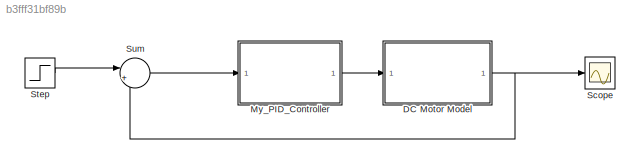
MODEL slx_b3fff31bf89b
KIND model
CONFIG AbsTol = auto
CONFIG EnableMultiTasking = off
CONFIG FixedStep = auto
CONFIG MaxStep = auto
CONFIG MinStep = auto
CONFIG RelTol = 1e-3
CONFIG SampleTimeConstraint = Unconstrained
CONFIG SolverName = VariableStepAuto
CONFIG StartTime = 0.0
CONFIG StopTime = 10.0
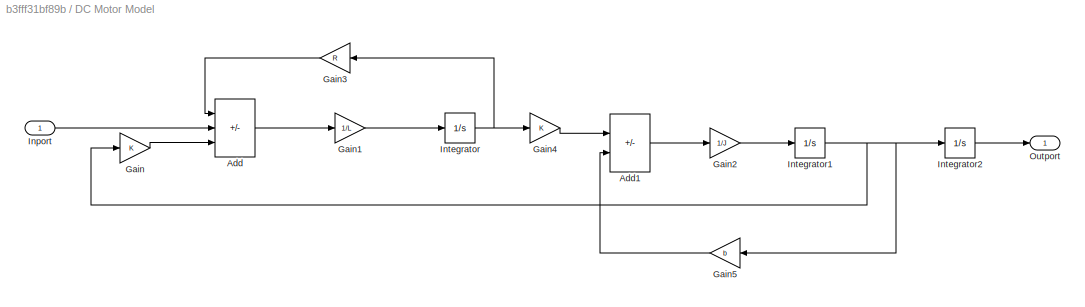
BLOCK [SubSystem] DC Motor Model
  Ports = [1, 1]
  RequestExecContextInheritance = off
BLOCK [Sum] DC Motor Model/Add
  IconShape = rectangular
  Inputs = -+-
  Ports = [3, 1]
BLOCK [Sum] DC Motor Model/Add1
  IconShape = rectangular
  Inputs = +-
  Ports = [2, 1]
BLOCK [Gain] DC Motor Model/Gain
  Gain = K
BLOCK [Gain] DC Motor Model/Gain1
  Gain = 1/L
BLOCK [Gain] DC Motor Model/Gain2
  Gain = 1/J
BLOCK [Gain] DC Motor Model/Gain3
  Gain = R
  NameLocation = top
BLOCK [Gain] DC Motor Model/Gain4
  Gain = K
BLOCK [Gain] DC Motor Model/Gain5
  Gain = b
  NameLocation = top
BLOCK [Inport] DC Motor Model/Inport
BLOCK [Integrator] DC Motor Model/Integrator
  Ports = [1, 1]
BLOCK [Integrator] DC Motor Model/Integrator1
  Ports = [1, 1]
BLOCK [Integrator] DC Motor Model/Integrator2
  Ports = [1, 1]
BLOCK [Outport] DC Motor Model/Outport
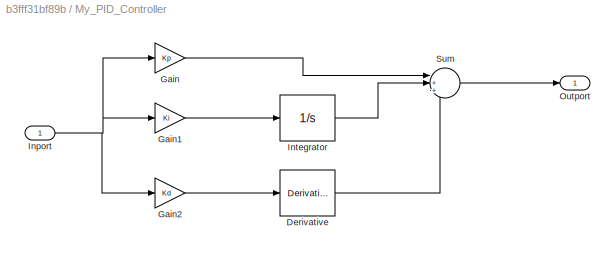
BLOCK [SubSystem] My_PID_Controller
  Ports = [1, 1]
  RequestExecContextInheritance = off
BLOCK [Derivative] My_PID_Controller/Derivative
BLOCK [Gain] My_PID_Controller/Gain
  Gain = Kp
BLOCK [Gain] My_PID_Controller/Gain1
  Gain = Ki
BLOCK [Gain] My_PID_Controller/Gain2
  Gain = Kd
BLOCK [Inport] My_PID_Controller/Inport
BLOCK [Integrator] My_PID_Controller/Integrator
  Ports = [1, 1]
BLOCK [Outport] My_PID_Controller/Outport
BLOCK [Sum] My_PID_Controller/Sum
  Inputs = |+++
  Ports = [3, 1]
BLOCK [Scope] Scope
  Floating = off
  NumInputPorts = 1
  Ports = [1]
  ScopeSpecificationString = Simulink.scopes.TimeScopeBlockCfg('CurrentConfiguration', extmgr.ConfigurationSet(extmgr.Configuration('Core','General UI',true),extmgr.Configuration('Core','Source UI',true),extmgr.Configuration('Sources','WiredSimulink',true),extmgr.Configuration('Visuals','Time Domain',true,'SerializedDisplays',{struct('MinYLimReal','-202.4094','MaxYLimReal','22.48993','YLabelReal','','MinYLimMag',' 0.00000','M...<+1369ch>
BLOCK [Step] Step
  After = 150
  SampleTime = 0
  Time = 0
BLOCK [Sum] Sum
  Inputs = |++
  Ports = [2, 1]
LINE DC Motor Model/Add1:1 -> DC Motor Model/Gain2:1
LINE DC Motor Model/Add:1 -> DC Motor Model/Gain1:1
LINE DC Motor Model/Gain1:1 -> DC Motor Model/Integrator:1
LINE DC Motor Model/Gain2:1 -> DC Motor Model/Integrator1:1
LINE DC Motor Model/Gain3:1 -> DC Motor Model/Add:1
LINE DC Motor Model/Gain4:1 -> DC Motor Model/Add1:1
LINE DC Motor Model/Gain5:1 -> DC Motor Model/Add1:2
LINE DC Motor Model/Gain:1 -> DC Motor Model/Add:3
LINE DC Motor Model/Inport:1 -> DC Motor Model/Add:2
NET DC Motor Model/Integrator1:1 -> DC Motor Model/Gain5:1, DC Motor Model/Gain:1, DC Motor Model/Integrator2:1
LINE DC Motor Model/Integrator2:1 -> DC Motor Model/Outport:1
NET DC Motor Model/Integrator:1 -> DC Motor Model/Gain3:1, DC Motor Model/Gain4:1
NET DC Motor Model:1 -> Scope:1, Sum:2
LINE My_PID_Controller/Derivative:1 -> My_PID_Controller/Sum:3
LINE My_PID_Controller/Gain1:1 -> My_PID_Controller/Integrator:1
LINE My_PID_Controller/Gain2:1 -> My_PID_Controller/Derivative:1
LINE My_PID_Controller/Gain:1 -> My_PID_Controller/Sum:1
NET My_PID_Controller/Inport:1 -> My_PID_Controller/Gain1:1, My_PID_Controller/Gain2:1, My_PID_Controller/Gain:1
LINE My_PID_Controller/Integrator:1 -> My_PID_Controller/Sum:2
LINE My_PID_Controller/Sum:1 -> My_PID_Controller/Outport:1
LINE My_PID_Controller:1 -> DC Motor Model:1
LINE Step:1 -> Sum:1
LINE Sum:1 -> My_PID_Controller:1
note: NET lines group one-source signal fan-out (src -> all destinations, sorted); 1:1 wires keep LINE
